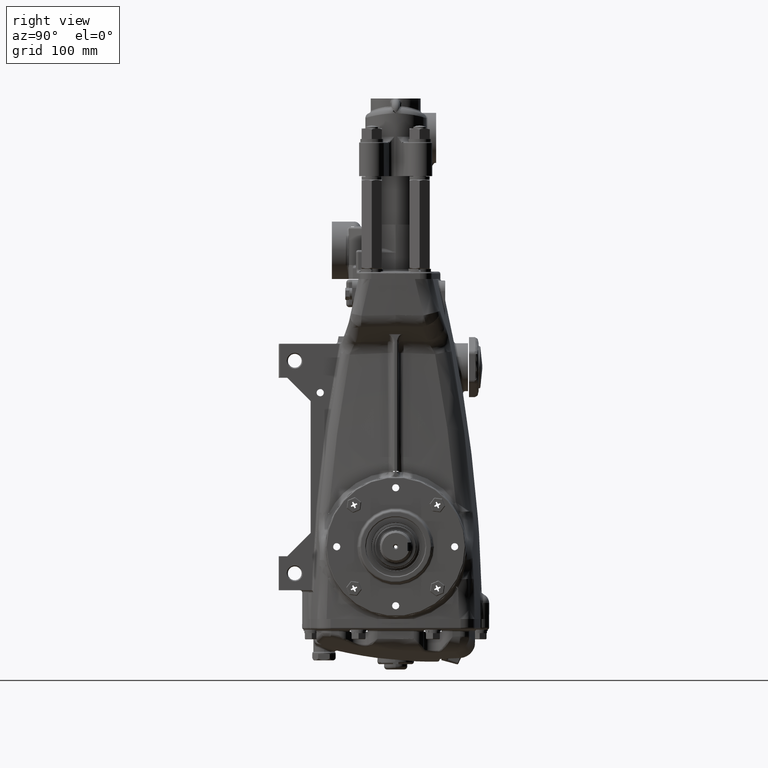
[diagram: clean part render]
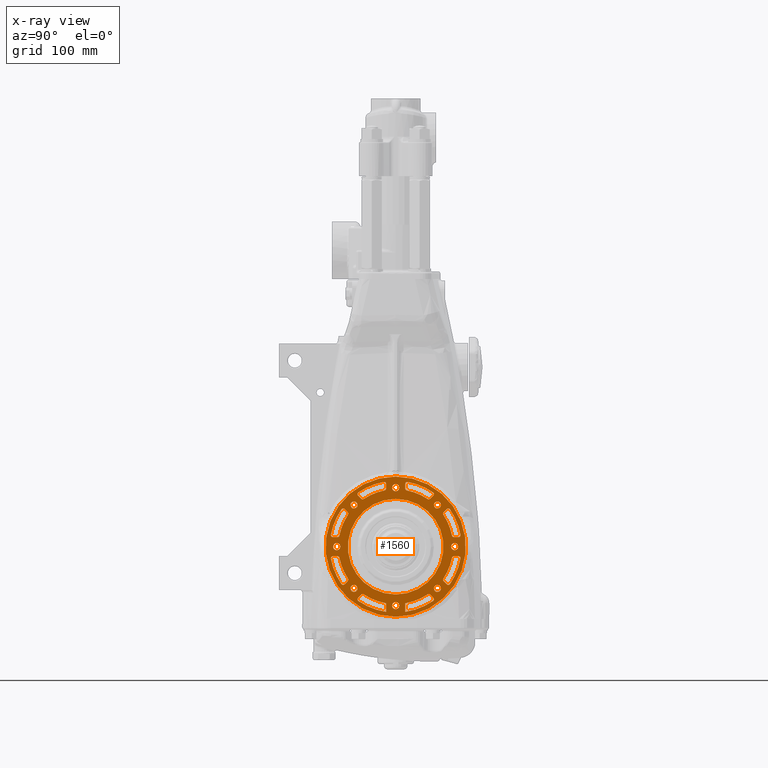
[diagram: x-ray — body ghosted, one internal face saturated and labeled with its STEP entity id]
A machine part, right view, then the same camera in x-ray: the body is ghosted and one INTERNAL B-rep face — a face not visible from any outside direction — is saturated and labeled: STEP entity #1560.
In plain terms, the highlighted planar face has unit normal (1, 0, -0).
Its self-contained STEP definition (entity closure, byte-faithful):
#107 = LINE ( 'NONE', #62931, #22532 ) ;
#106 = AXIS2_PLACEMENT_3D ( 'NONE', #72000, #13389, #23381 ) ;
#155 = DIRECTION ( 'NONE',  ( -1.000000000000000000, -0.000000000000000000, 2.542649619626401295E-33 ) ) ;
#390 = CARTESIAN_POINT ( 'NONE',  ( 4.448818897637796255, -1.545056155742266846, 1.414209699049338909 ) ) ;
#454 = EDGE_CURVE ( 'NONE', #49124, #89845, #58560, .T. ) ;
#677 = DIRECTION ( 'NONE',  ( -1.000000000000000000, -0.000000000000000000, 2.542649619626401295E-33 ) ) ;
#1230 = VERTEX_POINT ( 'NONE', #62311 ) ;
#1289 = CARTESIAN_POINT ( 'NONE',  ( 4.448818897637796255, -1.222376485180403316, -1.834831177546709879 ) ) ;
#1306 = EDGE_CURVE ( 'NONE', #48693, #75830, #32025, .T. ) ;
#1560 = ADVANCED_FACE ( 'NONE', ( #54784, #39452, #32559, #6758, #40509, #71695, #47407, #87027, #64802, #56887, #103949, #23612, #64288, #63768, #96539, #96015, #89112, #16740 ), #8841, .T. ) ;
#1957 = CARTESIAN_POINT ( 'NONE',  ( 4.448818897637796255, -1.769301492634324013, -1.178720182138250916 ) ) ;
#2025 = DIRECTION ( 'NONE',  ( -1.000000000000000000, -0.000000000000000000, 2.542649619626401295E-33 ) ) ;
#2055 = DIRECTION ( 'NONE',  ( 0.000000000000000000, -3.469446951953617344E-15, -1.000000000000000000 ) ) ;
#2303 = VECTOR ( 'NONE', #89958, 39.37007874015748854 ) ;
#2469 = DIRECTION ( 'NONE',  ( 0.000000000000000000, -3.469446951953611428E-15, -1.000000000000000000 ) ) ;
#3062 = EDGE_LOOP ( 'NONE', ( #70900, #11997 ) ) ;
#3457 = CARTESIAN_POINT ( 'NONE',  ( 4.448818897637796255, 1.380319299662858157, 2.013189148441365983 ) ) ;
#3515 = CIRCLE ( 'NONE', #106, 0.07874015748031495954 ) ;
#3562 = EDGE_CURVE ( 'NONE', #32742, #46263, #10424, .T. ) ;
#3587 = AXIS2_PLACEMENT_3D ( 'NONE', #35916, #36440, #4265 ) ;
#3682 = ORIENTED_EDGE ( 'NONE', *, *, #33561, .T. ) ;
#3728 = DIRECTION ( 'NONE',  ( -1.000000000000000000, -0.000000000000000000, 2.542649619626401295E-33 ) ) ;
#3759 = AXIS2_PLACEMENT_3D ( 'NONE', #10485, #60109, #27353 ) ;
#3977 = EDGE_CURVE ( 'NONE', #31525, #1230, #69613, .T. ) ;
#4036 = VERTEX_POINT ( 'NONE', #19215 ) ;
#4265 = DIRECTION ( 'NONE',  ( 0.000000000000000000, -6.938893903907222856E-15, -1.000000000000000000 ) ) ;
#4395 = VERTEX_POINT ( 'NONE', #35961 ) ;
#4470 = VERTEX_POINT ( 'NONE', #77189 ) ;
#4472 = DIRECTION ( 'NONE',  ( 1.000000000000000000, -0.000000000000000000, 9.899117423955728400E-17 ) ) ;
#4523 = VERTEX_POINT ( 'NONE', #103554 ) ;
#4569 = CIRCLE ( 'NONE', #13004, 0.1308464566929133932 ) ;
#5236 = ORIENTED_EDGE ( 'NONE', *, *, #8712, .T. ) ;
#5733 = ORIENTED_EDGE ( 'NONE', *, *, #71759, .T. ) ;
#6016 = EDGE_CURVE ( 'NONE', #100038, #67600, #25650, .T. ) ;
#6105 = DIRECTION ( 'NONE',  ( 0.000000000000000000, 0.000000000000000000, -1.000000000000000000 ) ) ;
#6178 = CIRCLE ( 'NONE', #75312, 0.07874015748031495954 ) ;
#6194 = ORIENTED_EDGE ( 'NONE', *, *, #18948, .T. ) ;
#6339 = AXIS2_PLACEMENT_3D ( 'NONE', #38952, #71719, #32067 ) ;
#6617 = CARTESIAN_POINT ( 'NONE',  ( 4.448818897637796255, 0.000000000000000000, 0.000000000000000000 ) ) ;
#6742 = DIRECTION ( 'NONE',  ( 0.000000000000000000, 0.000000000000000000, 1.000000000000000000 ) ) ;
#6758 = FACE_BOUND ( 'NONE', #31733, .T. ) ;
#6765 = CARTESIAN_POINT ( 'NONE',  ( 4.448818897637796255, -1.391470569947497182, -1.892569863701748956 ) ) ;
#6808 = DIRECTION ( 'NONE',  ( 0.000000000000000000, 0.000000000000000000, -1.000000000000000000 ) ) ;
#6835 = EDGE_CURVE ( 'NONE', #46545, #62908, #19720, .T. ) ;
#6973 = CARTESIAN_POINT ( 'NONE',  ( 4.448818897637796255, 1.278054184486443701, -1.779153478240673492 ) ) ;
#7014 = EDGE_LOOP ( 'NONE', ( #93023, #81608 ) ) ;
#7043 = DIRECTION ( 'NONE',  ( 0.000000000000000000, 0.000000000000000000, 1.000000000000000000 ) ) ;
#7148 = AXIS2_PLACEMENT_3D ( 'NONE', #29057, #85624, #94575 ) ;
#7303 = VERTEX_POINT ( 'NONE', #390 ) ;
#7809 = VERTEX_POINT ( 'NONE', #55188 ) ;
#7924 = CARTESIAN_POINT ( 'NONE',  ( 4.448818897637796255, 0.3543307086614173040, 2.161772269809818514 ) ) ;
#7957 = DIRECTION ( 'NONE',  ( 0.000000000000000000, 0.000000000000000000, 1.000000000000000000 ) ) ;
#8227 = CARTESIAN_POINT ( 'NONE',  ( 4.448818897637796255, -1.892569863701741184, 1.391470569947510727 ) ) ;
#8712 = EDGE_CURVE ( 'NONE', #103483, #24034, #74893, .T. ) ;
#8809 = DIRECTION ( 'NONE',  ( -1.000000000000000000, -0.000000000000000000, -9.899117423955728400E-17 ) ) ;
#8838 = EDGE_CURVE ( 'NONE', #24034, #97569, #99561, .T. ) ;
#8841 = PLANE ( 'NONE',  #79254 ) ;
#8930 = ORIENTED_EDGE ( 'NONE', *, *, #92993, .T. ) ;
#9117 = EDGE_CURVE ( 'NONE', #59806, #29646, #96688, .T. ) ;
#9146 = CARTESIAN_POINT ( 'NONE',  ( 4.448818897637796255, 0.000000000000000000, -2.185039370078739829 ) ) ;
#9323 = AXIS2_PLACEMENT_3D ( 'NONE', #15604, #73709, #80061 ) ;
#9557 = EDGE_CURVE ( 'NONE', #62908, #100368, #10722, .T. ) ;
#9860 = CARTESIAN_POINT ( 'NONE',  ( 4.448818897637796255, -1.178720182138244033, -1.769301492634328232 ) ) ;
#10351 = VERTEX_POINT ( 'NONE', #48257 ) ;
#10397 = CARTESIAN_POINT ( 'NONE',  ( 4.448818897637796255, -1.222376485180395989, 1.834831177546715653 ) ) ;
#10420 = ORIENTED_EDGE ( 'NONE', *, *, #66974, .T. ) ;
#10424 = CIRCLE ( 'NONE', #64455, 0.07874015748031502893 ) ;
#10463 = ORIENTED_EDGE ( 'NONE', *, *, #96919, .T. ) ;
#10485 = CARTESIAN_POINT ( 'NONE',  ( 4.448818897637796255, 1.545056155742267512, 1.545056155742250636 ) ) ;
#10702 = EDGE_CURVE ( 'NONE', #100368, #59806, #96615, .T. ) ;
#10722 = CIRCLE ( 'NONE', #78181, 0.07874015748031495954 ) ;
#10766 = DIRECTION ( 'NONE',  ( 0.000000000000000000, 0.000000000000000000, 1.000000000000000000 ) ) ;
#10776 = CARTESIAN_POINT ( 'NONE',  ( 4.448818897637796255, 0.000000000000000000, -4.975950889780015573E-33 ) ) ;
#10815 = ORIENTED_EDGE ( 'NONE', *, *, #92539, .T. ) ;
#10944 = ORIENTED_EDGE ( 'NONE', *, *, #43367, .T. ) ;
#10980 = VERTEX_POINT ( 'NONE', #80873 ) ;
#11078 = DIRECTION ( 'NONE',  ( -1.000000000000000000, -0.000000000000000000, 2.542649619626401295E-33 ) ) ;
#11109 = VERTEX_POINT ( 'NONE', #19031 ) ;
#11268 = CIRCLE ( 'NONE', #34879, 0.1308464566929133932 ) ;
#11309 = EDGE_CURVE ( 'NONE', #17753, #93606, #53378, .T. ) ;
#11907 = AXIS2_PLACEMENT_3D ( 'NONE', #77648, #15142, #38906 ) ;
#11997 = ORIENTED_EDGE ( 'NONE', *, *, #44778, .T. ) ;
#12400 = VERTEX_POINT ( 'NONE', #14214 ) ;
#12913 = DIRECTION ( 'NONE',  ( 0.000000000000000000, 0.000000000000000000, 1.000000000000000000 ) ) ;
#13004 = AXIS2_PLACEMENT_3D ( 'NONE', #85896, #21948, #37786 ) ;
#13162 = DIRECTION ( 'NONE',  ( 0.000000000000000000, 0.000000000000000000, 1.000000000000000000 ) ) ;
#13271 = AXIS2_PLACEMENT_3D ( 'NONE', #22253, #38090, #54472 ) ;
#13370 = CARTESIAN_POINT ( 'NONE',  ( 4.448818897637796255, 1.545056155742267512, 1.414209699049337354 ) ) ;
#13389 = DIRECTION ( 'NONE',  ( -1.000000000000000000, -0.000000000000000000, 2.542649619626401295E-33 ) ) ;
#13487 = CARTESIAN_POINT ( 'NONE',  ( 4.448818897637796255, 1.335792870641483443, -1.948247563007767136 ) ) ;
#13518 = VERTEX_POINT ( 'NONE', #63218 ) ;
#13525 = CIRCLE ( 'NONE', #11907, 2.440944881889764329 ) ;
#13558 = EDGE_CURVE ( 'NONE', #34883, #103238, #78045, .T. ) ;
#13670 = CARTESIAN_POINT ( 'NONE',  ( 4.448818897637796255, -1.732821347429613024, 1.231722053675382345 ) ) ;
#13691 = EDGE_CURVE ( 'NONE', #94873, #81909, #25764, .T. ) ;
#13693 = AXIS2_PLACEMENT_3D ( 'NONE', #29490, #30011, #62752 ) ;
#13783 = EDGE_CURVE ( 'NONE', #11109, #16750, #80014, .T. ) ;
#14003 = DIRECTION ( 'NONE',  ( -1.000000000000000000, -0.000000000000000000, 2.542649619626401295E-33 ) ) ;
#14047 = ORIENTED_EDGE ( 'NONE', *, *, #88598, .T. ) ;
#14153 = CARTESIAN_POINT ( 'NONE',  ( 4.448818897637796255, -2.399572835668333237, -0.4475065616797894719 ) ) ;
#14214 = CARTESIAN_POINT ( 'NONE',  ( 4.448818897637796255, -1.380319299662845056, 2.013189148441374865 ) ) ;
#14644 = DIRECTION ( 'NONE',  ( -1.000000000000000000, -0.000000000000000000, -9.899117423955728400E-17 ) ) ;
#14743 = CIRCLE ( 'NONE', #99110, 2.440944881889763884 ) ;
#14753 = VERTEX_POINT ( 'NONE', #51706 ) ;
#14924 = CARTESIAN_POINT ( 'NONE',  ( 4.448818897637796255, 1.948247563007781569, -1.335792870641463015 ) ) ;
#15030 = ORIENTED_EDGE ( 'NONE', *, *, #69145, .T. ) ;
#15053 = CARTESIAN_POINT ( 'NONE',  ( 4.448818897637796255, -1.545056155742266846, 1.545056155742252191 ) ) ;
#15071 = EDGE_CURVE ( 'NONE', #51539, #71393, #93524, .T. ) ;
#15142 = DIRECTION ( 'NONE',  ( -1.000000000000000000, -0.000000000000000000, -9.899117423955728400E-17 ) ) ;
#15295 = VERTEX_POINT ( 'NONE', #49754 ) ;
#15459 = VERTEX_POINT ( 'NONE', #35988 ) ;
#15604 = CARTESIAN_POINT ( 'NONE',  ( 4.448818897637796255, 0.000000000000000000, -2.185039370078739829 ) ) ;
#15676 = CARTESIAN_POINT ( 'NONE',  ( 4.448818897637796255, -2.185039370078740273, 3.577780186915982985E-67 ) ) ;
#15690 = DIRECTION ( 'NONE',  ( 1.000000000000000000, 0.000000000000000000, -2.542649619626400953E-33 ) ) ;
#15822 = EDGE_CURVE ( 'NONE', #68631, #73965, #53078, .T. ) ;
#16142 = AXIS2_PLACEMENT_3D ( 'NONE', #97527, #57324, #71619 ) ;
#16317 = EDGE_CURVE ( 'NONE', #82056, #7303, #39643, .T. ) ;
#16514 = EDGE_LOOP ( 'NONE', ( #45773, #96604, #45759, #51324, #27729, #22775, #10420, #15030 ) ) ;
#16740 = FACE_OUTER_BOUND ( 'NONE', #67904, .T. ) ;
#16750 = VERTEX_POINT ( 'NONE', #22406 ) ;
#16769 = CARTESIAN_POINT ( 'NONE',  ( 4.448818897637796255, 2.168196436623980539, -1.432039704700285965 ) ) ;
#17185 = ORIENTED_EDGE ( 'NONE', *, *, #68170, .T. ) ;
#17497 = EDGE_CURVE ( 'NONE', #19111, #81239, #89751, .T. ) ;
#17598 = DIRECTION ( 'NONE',  ( -1.000000000000000000, -0.000000000000000000, -9.899117423955728400E-17 ) ) ;
#17668 = EDGE_CURVE ( 'NONE', #14753, #32742, #57702, .T. ) ;
#17753 = VERTEX_POINT ( 'NONE', #41400 ) ;
#17812 = CIRCLE ( 'NONE', #16142, 0.1308464566929133932 ) ;
#17826 = EDGE_CURVE ( 'NONE', #57485, #100979, #71205, .T. ) ;
#17935 = DIRECTION ( 'NONE',  ( -1.000000000000000000, -0.000000000000000000, 2.542649619626401295E-33 ) ) ;
#18095 = AXIS2_PLACEMENT_3D ( 'NONE', #31676, #23752, #7957 ) ;
#18115 = ORIENTED_EDGE ( 'NONE', *, *, #60191, .T. ) ;
#18167 = CARTESIAN_POINT ( 'NONE',  ( 4.448818897637796255, 0.000000000000000000, 0.000000000000000000 ) ) ;
#18781 = AXIS2_PLACEMENT_3D ( 'NONE', #36648, #4472, #44065 ) ;
#18809 = DIRECTION ( 'NONE',  ( 0.000000000000000000, 0.000000000000000000, 1.000000000000000000 ) ) ;
#18948 = EDGE_CURVE ( 'NONE', #81909, #69058, #73099, .T. ) ;
#19031 = CARTESIAN_POINT ( 'NONE',  ( 4.448818897637796255, -2.161772269809818070, 0.3543307086614185808 ) ) ;
#19111 = VERTEX_POINT ( 'NONE', #83251 ) ;
#19182 = AXIS2_PLACEMENT_3D ( 'NONE', #73074, #40828, #56690 ) ;
#19193 = CIRCLE ( 'NONE', #84959, 0.07874015748031502893 ) ;
#19215 = CARTESIAN_POINT ( 'NONE',  ( 4.448818897637796255, 1.278054184486436373, 1.779153478240679265 ) ) ;
#19321 = EDGE_CURVE ( 'NONE', #29646, #65592, #107, .T. ) ;
#19640 = VECTOR ( 'NONE', #57085, 39.37007874015748854 ) ;
#19720 = LINE ( 'NONE', #60392, #98093 ) ;
#19786 = VERTEX_POINT ( 'NONE', #79738 ) ;
#19944 = ORIENTED_EDGE ( 'NONE', *, *, #25180, .T. ) ;
#20029 = CARTESIAN_POINT ( 'NONE',  ( 4.448818897637796255, -1.834831177546705216, -1.222376485180409755 ) ) ;
#20047 = CIRCLE ( 'NONE', #40324, 2.598425196850393970 ) ;
#20293 = AXIS2_PLACEMENT_3D ( 'NONE', #15053, #46782, #47289 ) ;
#20408 = ORIENTED_EDGE ( 'NONE', *, *, #83544, .T. ) ;
#20551 = CIRCLE ( 'NONE', #39077, 0.1308464566929133932 ) ;
#20610 = CARTESIAN_POINT ( 'NONE',  ( 4.448818897637796255, 1.545056155742267512, 1.675902612435164141 ) ) ;
#20856 = CARTESIAN_POINT ( 'NONE',  ( 4.448818897637796255, 1.545056155742267290, -1.414209699049337354 ) ) ;
#20939 = VERTEX_POINT ( 'NONE', #62442 ) ;
#20992 = CIRCLE ( 'NONE', #41254, 0.07874015748031502893 ) ;
#21049 = CARTESIAN_POINT ( 'NONE',  ( 4.448818897637796255, 0.000000000000000000, 0.000000000000000000 ) ) ;
#21189 = ORIENTED_EDGE ( 'NONE', *, *, #88444, .T. ) ;
#21518 = DIRECTION ( 'NONE',  ( -1.000000000000000000, -0.000000000000000000, -9.899117423955728400E-17 ) ) ;
#21613 = CARTESIAN_POINT ( 'NONE',  ( 4.448818897637796255, -1.545056155742268178, -1.545056155742250192 ) ) ;
#21665 = CARTESIAN_POINT ( 'NONE',  ( 4.448818897637796255, -1.948247563007768690, 1.335792870641482999 ) ) ;
#21714 = VERTEX_POINT ( 'NONE', #42333 ) ;
#21754 = ORIENTED_EDGE ( 'NONE', *, *, #62613, .T. ) ;
#21948 = DIRECTION ( 'NONE',  ( -1.000000000000000000, -0.000000000000000000, -9.899117423955728400E-17 ) ) ;
#22013 = DIRECTION ( 'NONE',  ( 0.000000000000000000, 0.000000000000000000, -1.000000000000000000 ) ) ;
#22038 = CARTESIAN_POINT ( 'NONE',  ( 4.448818897637796255, -0.3543307086614173040, -2.415090405207086288 ) ) ;
#22253 = CARTESIAN_POINT ( 'NONE',  ( 4.448818897637796255, 0.000000000000000000, 0.000000000000000000 ) ) ;
#22406 = CARTESIAN_POINT ( 'NONE',  ( 4.448818897637796255, -2.322167260324193627, 0.3543307086614186918 ) ) ;
#22532 = VECTOR ( 'NONE', #79859, 39.37007874015748854 ) ;
#22638 = CARTESIAN_POINT ( 'NONE',  ( 4.448818897637796255, 1.178720182138256911, -1.769301492634320017 ) ) ;
#22720 = VERTEX_POINT ( 'NONE', #57119 ) ;
#22744 = AXIS2_PLACEMENT_3D ( 'NONE', #33566, #8809, #80642 ) ;
#22762 = DIRECTION ( 'NONE',  ( -1.000000000000000000, -0.000000000000000000, -9.899117423955728400E-17 ) ) ;
#22775 = ORIENTED_EDGE ( 'NONE', *, *, #11309, .T. ) ;
#22960 = DIRECTION ( 'NONE',  ( -1.000000000000000000, -0.000000000000000000, -9.899117423955728400E-17 ) ) ;
#23099 = CIRCLE ( 'NONE', #46716, 0.07874015748031502893 ) ;
#23135 = VERTEX_POINT ( 'NONE', #7924 ) ;
#23381 = DIRECTION ( 'NONE',  ( 0.000000000000000000, 0.000000000000000000, -1.000000000000000000 ) ) ;
#23392 = ORIENTED_EDGE ( 'NONE', *, *, #63576, .T. ) ;
#23612 = FACE_BOUND ( 'NONE', #16514, .T. ) ;
#23661 = CARTESIAN_POINT ( 'NONE',  ( 4.448818897637796255, -1.948247563007772021, -1.335792870641476782 ) ) ;
#23688 = CARTESIAN_POINT ( 'NONE',  ( 4.448818897637796255, -1.834831177546701886, 1.222376485180416417 ) ) ;
#23743 = CARTESIAN_POINT ( 'NONE',  ( 4.448818897637796255, -1.545056155742268178, -1.545056155742250192 ) ) ;
#23752 = DIRECTION ( 'NONE',  ( -1.000000000000000000, -0.000000000000000000, -9.899117423955728400E-17 ) ) ;
#23822 = CIRCLE ( 'NONE', #3587, 0.07874015748031502893 ) ;
#23863 = EDGE_CURVE ( 'NONE', #98036, #23135, #72960, .T. ) ;
#24034 = VERTEX_POINT ( 'NONE', #52725 ) ;
#24078 = VERTEX_POINT ( 'NONE', #6765 ) ;
#24267 = AXIS2_PLACEMENT_3D ( 'NONE', #56122, #70930, #7043 ) ;
#24616 = DIRECTION ( 'NONE',  ( -1.000000000000000000, -0.000000000000000000, 2.542649619626401295E-33 ) ) ;
#25143 = VECTOR ( 'NONE', #60376, 39.37007874015748854 ) ;
#25180 = EDGE_CURVE ( 'NONE', #72159, #53357, #75837, .T. ) ;
#25511 = CARTESIAN_POINT ( 'NONE',  ( 4.448818897637796255, -2.185039370078740273, 0.1308464566929133932 ) ) ;
#25515 = VERTEX_POINT ( 'NONE', #55418 ) ;
#25554 = EDGE_CURVE ( 'NONE', #16750, #14753, #6178, .T. ) ;
#25650 = CIRCLE ( 'NONE', #3759, 0.1308464566929133932 ) ;
#25764 = CIRCLE ( 'NONE', #45991, 0.07874015748031502893 ) ;
#26133 = CARTESIAN_POINT ( 'NONE',  ( 4.448818897637796255, -2.168196436624624024, -1.432039704699310967 ) ) ;
#26571 = EDGE_CURVE ( 'NONE', #101565, #103483, #14743, .T. ) ;
#26624 = AXIS2_PLACEMENT_3D ( 'NONE', #23661, #101919, #6808 ) ;
#26708 = CARTESIAN_POINT ( 'NONE',  ( 4.448818897637796255, 0.3543307086614173040, 2.096248742043171021 ) ) ;
#26796 = VERTEX_POINT ( 'NONE', #73392 ) ;
#26927 = EDGE_LOOP ( 'NONE', ( #28926, #78150, #10815, #60186, #19944, #40314, #104386, #50895 ) ) ;
#27353 = DIRECTION ( 'NONE',  ( 0.000000000000000000, 0.000000000000000000, 1.000000000000000000 ) ) ;
#27536 = AXIS2_PLACEMENT_3D ( 'NONE', #93915, #21518, #36834 ) ;
#27729 = ORIENTED_EDGE ( 'NONE', *, *, #104530, .T. ) ;
#27826 = ORIENTED_EDGE ( 'NONE', *, *, #10702, .T. ) ;
#28405 = CARTESIAN_POINT ( 'NONE',  ( 4.448818897637796255, -1.391470569947490077, 1.892569863701754951 ) ) ;
#28553 = DIRECTION ( 'NONE',  ( -1.000000000000000000, -0.000000000000000000, -9.899117423955728400E-17 ) ) ;
#28634 = LINE ( 'NONE', #62398, #72715 ) ;
#28669 = EDGE_CURVE ( 'NONE', #75830, #4395, #70182, .T. ) ;
#28926 = ORIENTED_EDGE ( 'NONE', *, *, #454, .T. ) ;
#29049 = CARTESIAN_POINT ( 'NONE',  ( 4.448818897637796255, -1.380319299662852162, -2.013189148441368648 ) ) ;
#29057 = CARTESIAN_POINT ( 'NONE',  ( 4.448818897637796255, 0.4330708661417322913, 2.161772269809818514 ) ) ;
#29290 = DIRECTION ( 'NONE',  ( 0.000000000000000000, -0.000000000000000000, -1.000000000000000000 ) ) ;
#29326 = DIRECTION ( 'NONE',  ( -1.000000000000000000, -0.000000000000000000, 2.542649619626401295E-33 ) ) ;
#29412 = CARTESIAN_POINT ( 'NONE',  ( 4.448818897637796255, 0.000000000000000000, -4.975950889780015573E-33 ) ) ;
#29457 = ORIENTED_EDGE ( 'NONE', *, *, #17497, .T. ) ;
#29490 = CARTESIAN_POINT ( 'NONE',  ( 4.448818897637796255, 0.000000000000000000, 0.000000000000000000 ) ) ;
#29491 = LINE ( 'NONE', #13670, #99221 ) ;
#29646 = VERTEX_POINT ( 'NONE', #103921 ) ;
#30011 = DIRECTION ( 'NONE',  ( -1.000000000000000000, -0.000000000000000000, -9.899117423955728400E-17 ) ) ;
#30382 = CARTESIAN_POINT ( 'NONE',  ( 4.448818897637796255, 0.3543307086614174151, -2.096248742043171021 ) ) ;
#30724 = VECTOR ( 'NONE', #94961, 39.37007874015748143 ) ;
#30945 = CARTESIAN_POINT ( 'NONE',  ( 4.448818897637796255, 0.4176040494938132452, 2.084566117316610789 ) ) ;
#31102 = CARTESIAN_POINT ( 'NONE',  ( 4.448818897637796255, -2.322167260324193627, 0.4330708661417335681 ) ) ;
#31226 = CIRCLE ( 'NONE', #58248, 2.125984251968503713 ) ;
#31235 = LINE ( 'NONE', #55533, #91067 ) ;
#31525 = VERTEX_POINT ( 'NONE', #61403 ) ;
#31555 = EDGE_LOOP ( 'NONE', ( #21189, #97870, #6194, #32214, #77983, #94242 ) ) ;
#31676 = CARTESIAN_POINT ( 'NONE',  ( 4.448818897637796255, 0.000000000000000000, 2.185039370078740717 ) ) ;
#31700 = CARTESIAN_POINT ( 'NONE',  ( 4.448818897637796255, -2.185039370078740273, 3.577780186915982985E-67 ) ) ;
#31733 = EDGE_LOOP ( 'NONE', ( #79843, #54600 ) ) ;
#32025 = CIRCLE ( 'NONE', #69167, 2.440944881889763884 ) ;
#32067 = DIRECTION ( 'NONE',  ( 0.000000000000000000, 0.000000000000000000, 1.000000000000000000 ) ) ;
#32214 = ORIENTED_EDGE ( 'NONE', *, *, #87213, .T. ) ;
#32512 = DIRECTION ( 'NONE',  ( -1.000000000000000000, -0.000000000000000000, 2.542649619626401295E-33 ) ) ;
#32559 = FACE_BOUND ( 'NONE', #76210, .T. ) ;
#32626 = EDGE_CURVE ( 'NONE', #15295, #22720, #11268, .T. ) ;
#32742 = VERTEX_POINT ( 'NONE', #86252 ) ;
#32934 = EDGE_LOOP ( 'NONE', ( #46339, #29457 ) ) ;
#33048 = DIRECTION ( 'NONE',  ( 0.000000000000000000, 0.000000000000000000, 1.000000000000000000 ) ) ;
#33222 = EDGE_CURVE ( 'NONE', #22720, #15295, #55185, .T. ) ;
#33561 = EDGE_CURVE ( 'NONE', #21714, #98036, #41753, .T. ) ;
#33566 = CARTESIAN_POINT ( 'NONE',  ( 4.448818897637796255, -1.545056155742266846, 1.545056155742252191 ) ) ;
#34059 = ORIENTED_EDGE ( 'NONE', *, *, #3977, .T. ) ;
#34813 = CIRCLE ( 'NONE', #83808, 2.125984251968504157 ) ;
#34879 = AXIS2_PLACEMENT_3D ( 'NONE', #100601, #62451, #78327 ) ;
#34883 = VERTEX_POINT ( 'NONE', #35776 ) ;
#35140 = EDGE_CURVE ( 'NONE', #65563, #88142, #58806, .T. ) ;
#35169 = VERTEX_POINT ( 'NONE', #97547 ) ;
#35461 = EDGE_CURVE ( 'NONE', #100979, #57485, #20047, .T. ) ;
#35494 = DIRECTION ( 'NONE',  ( 0.000000000000000000, -2.142009898075826297E-16, 1.000000000000000000 ) ) ;
#35599 = EDGE_CURVE ( 'NONE', #7809, #35169, #82508, .T. ) ;
#35635 = VERTEX_POINT ( 'NONE', #9860 ) ;
#35758 = EDGE_CURVE ( 'NONE', #65592, #39560, #95361, .T. ) ;
#35776 = CARTESIAN_POINT ( 'NONE',  ( 4.448818897637796255, 2.084566117316610789, 0.4176040494938145220 ) ) ;
#35916 = CARTESIAN_POINT ( 'NONE',  ( 4.448818897637796255, 1.335792870641475893, 1.948247563007773575 ) ) ;
#35961 = CARTESIAN_POINT ( 'NONE',  ( 4.448818897637796255, 2.322167260324193627, 0.3543307086614186918 ) ) ;
#35988 = CARTESIAN_POINT ( 'NONE',  ( 4.448818897637796255, 2.084566117316610345, -0.4176040494938125791 ) ) ;
#36108 = CARTESIAN_POINT ( 'NONE',  ( 4.448818897637796255, 2.399572835668333237, 0.4475065616797913037 ) ) ;
#36218 = CIRCLE ( 'NONE', #91911, 0.07874015748031489015 ) ;
#36366 = DIRECTION ( 'NONE',  ( -1.000000000000000000, -0.000000000000000000, -9.899117423955728400E-17 ) ) ;
#36440 = DIRECTION ( 'NONE',  ( -1.000000000000000000, -0.000000000000000000, 2.542649619626401295E-33 ) ) ;
#36530 = ORIENTED_EDGE ( 'NONE', *, *, #17826, .T. ) ;
#36648 = CARTESIAN_POINT ( 'NONE',  ( 4.448818897637796255, 0.000000000000000000, 0.000000000000000000 ) ) ;
#36653 = CARTESIAN_POINT ( 'NONE',  ( 4.448818897637796255, 0.000000000000000000, 0.000000000000000000 ) ) ;
#36795 = CARTESIAN_POINT ( 'NONE',  ( 4.448818897637796255, 2.322167260324193183, -0.3543307086614165824 ) ) ;
#36834 = DIRECTION ( 'NONE',  ( 0.000000000000000000, 0.000000000000000000, 1.000000000000000000 ) ) ;
#36917 = AXIS2_PLACEMENT_3D ( 'NONE', #97028, #80644, #33048 ) ;
#37388 = DIRECTION ( 'NONE',  ( 0.000000000000000000, 0.000000000000000000, 1.000000000000000000 ) ) ;
#37786 = DIRECTION ( 'NONE',  ( 0.000000000000000000, 0.000000000000000000, 1.000000000000000000 ) ) ;
#37988 = ORIENTED_EDGE ( 'NONE', *, *, #28669, .T. ) ;
#38090 = DIRECTION ( 'NONE',  ( 1.000000000000000000, -0.000000000000000000, 9.899117423955728400E-17 ) ) ;
#38747 = CARTESIAN_POINT ( 'NONE',  ( 4.448818897637796255, 2.013189148441373977, -1.380319299662845056 ) ) ;
#38794 = CARTESIAN_POINT ( 'NONE',  ( 4.448818897637796255, -2.096248742043170576, 0.3543307086614185808 ) ) ;
#38906 = DIRECTION ( 'NONE',  ( 0.000000000000000000, 0.000000000000000000, 1.000000000000000000 ) ) ;
#38952 = CARTESIAN_POINT ( 'NONE',  ( 4.448818897637796255, 0.000000000000000000, 0.000000000000000000 ) ) ;
#39077 = AXIS2_PLACEMENT_3D ( 'NONE', #21613, #100391, #101416 ) ;
#39402 = EDGE_CURVE ( 'NONE', #53357, #10980, #20992, .T. ) ;
#39452 = FACE_BOUND ( 'NONE', #96269, .T. ) ;
#39560 = VERTEX_POINT ( 'NONE', #76354 ) ;
#39576 = CARTESIAN_POINT ( 'NONE',  ( 4.448818897637796255, 0.000000000000000000, 0.000000000000000000 ) ) ;
#39595 = CIRCLE ( 'NONE', #59836, 0.07874015748031495954 ) ;
#39643 = CIRCLE ( 'NONE', #22744, 0.1308464566929133932 ) ;
#40314 = ORIENTED_EDGE ( 'NONE', *, *, #39402, .T. ) ;
#40324 = AXIS2_PLACEMENT_3D ( 'NONE', #29412, #61645, #22013 ) ;
#40509 = FACE_BOUND ( 'NONE', #88101, .T. ) ;
#40539 = ORIENTED_EDGE ( 'NONE', *, *, #53030, .T. ) ;
#40667 = CARTESIAN_POINT ( 'NONE',  ( 4.448818897637796255, 2.415090405207086732, 0.3543307086614186918 ) ) ;
#40828 = DIRECTION ( 'NONE',  ( -1.000000000000000000, -0.000000000000000000, -9.899117423955728400E-17 ) ) ;
#40832 = CARTESIAN_POINT ( 'NONE',  ( 4.448818897637796255, -1.779153478240678155, -1.278054184486436817 ) ) ;
#40920 = EDGE_CURVE ( 'NONE', #89845, #12400, #92127, .T. ) ;
#41101 = CIRCLE ( 'NONE', #73178, 0.07874015748031502893 ) ;
#41254 = AXIS2_PLACEMENT_3D ( 'NONE', #82718, #65793, #73223 ) ;
#41302 = CIRCLE ( 'NONE', #100416, 0.07874015748031495954 ) ;
#41400 = CARTESIAN_POINT ( 'NONE',  ( 4.448818897637796255, -1.779153478240674602, 1.278054184486443923 ) ) ;
#41665 = EDGE_CURVE ( 'NONE', #4470, #72159, #70215, .T. ) ;
#41753 = CIRCLE ( 'NONE', #6339, 2.125984251968504157 ) ;
#42136 = DIRECTION ( 'NONE',  ( 0.000000000000000000, 0.000000000000000000, -1.000000000000000000 ) ) ;
#42169 = DIRECTION ( 'NONE',  ( -1.000000000000000000, -0.000000000000000000, 2.542649619626401295E-33 ) ) ;
#42265 = VERTEX_POINT ( 'NONE', #25511 ) ;
#42333 = CARTESIAN_POINT ( 'NONE',  ( 4.448818897637796255, 1.178720182138251360, 1.769301492634324235 ) ) ;
#42417 = EDGE_LOOP ( 'NONE', ( #77846, #86735, #18115, #8930, #40539, #34059 ) ) ;
#42559 = DIRECTION ( 'NONE',  ( -1.000000000000000000, -0.000000000000000000, -9.899117423955728400E-17 ) ) ;
#42779 = DIRECTION ( 'NONE',  ( -1.000000000000000000, -0.000000000000000000, 2.542649619626401295E-33 ) ) ;
#43215 = AXIS2_PLACEMENT_3D ( 'NONE', #9146, #97900, #50308 ) ;
#43309 = ORIENTED_EDGE ( 'NONE', *, *, #47537, .T. ) ;
#43367 = EDGE_CURVE ( 'NONE', #26796, #42265, #97548, .T. ) ;
#43973 = ORIENTED_EDGE ( 'NONE', *, *, #104452, .T. ) ;
#44065 = DIRECTION ( 'NONE',  ( 0.000000000000000000, 0.000000000000000000, 1.000000000000000000 ) ) ;
#44071 = ORIENTED_EDGE ( 'NONE', *, *, #70075, .T. ) ;
#44514 = EDGE_CURVE ( 'NONE', #79577, #97500, #68260, .T. ) ;
#44778 = EDGE_CURVE ( 'NONE', #71393, #51539, #66574, .T. ) ;
#45025 = CARTESIAN_POINT ( 'NONE',  ( 4.448818897637796255, 0.000000000000000000, 0.000000000000000000 ) ) ;
#45387 = EDGE_CURVE ( 'NONE', #15459, #46545, #41302, .T. ) ;
#45647 = CIRCLE ( 'NONE', #94532, 0.07874015748031502893 ) ;
#45670 = ORIENTED_EDGE ( 'NONE', *, *, #35758, .T. ) ;
#45759 = ORIENTED_EDGE ( 'NONE', *, *, #17668, .T. ) ;
#45773 = ORIENTED_EDGE ( 'NONE', *, *, #13783, .T. ) ;
#45835 = ORIENTED_EDGE ( 'NONE', *, *, #35461, .T. ) ;
#45991 = AXIS2_PLACEMENT_3D ( 'NONE', #13487, #14003, #6105 ) ;
#46263 = VERTEX_POINT ( 'NONE', #8227 ) ;
#46293 = ORIENTED_EDGE ( 'NONE', *, *, #84152, .T. ) ;
#46339 = ORIENTED_EDGE ( 'NONE', *, *, #101624, .T. ) ;
#46545 = VERTEX_POINT ( 'NONE', #77330 ) ;
#46716 = AXIS2_PLACEMENT_3D ( 'NONE', #10397, #51566, #2469 ) ;
#46782 = DIRECTION ( 'NONE',  ( -1.000000000000000000, -0.000000000000000000, -9.899117423955728400E-17 ) ) ;
#46810 = EDGE_CURVE ( 'NONE', #10980, #53624, #34813, .T. ) ;
#47267 = EDGE_CURVE ( 'NONE', #67600, #100038, #4569, .T. ) ;
#47289 = DIRECTION ( 'NONE',  ( 0.000000000000000000, 0.000000000000000000, 1.000000000000000000 ) ) ;
#47407 = FACE_BOUND ( 'NONE', #7014, .T. ) ;
#47537 = EDGE_CURVE ( 'NONE', #90301, #68631, #31226, .T. ) ;
#47926 = DIRECTION ( 'NONE',  ( 2.542649619626400953E-33, 0.000000000000000000, 1.000000000000000000 ) ) ;
#48043 = DIRECTION ( 'NONE',  ( -1.000000000000000000, -0.000000000000000000, -9.899117423955728400E-17 ) ) ;
#48054 = DIRECTION ( 'NONE',  ( 0.000000000000000000, 0.000000000000000000, 1.000000000000000000 ) ) ;
#48257 = CARTESIAN_POINT ( 'NONE',  ( 4.448818897637796255, 1.779153478240682373, 1.278054184486431710 ) ) ;
#48693 = VERTEX_POINT ( 'NONE', #76184 ) ;
#48777 = CARTESIAN_POINT ( 'NONE',  ( 4.448818897637796255, 0.4475065616797899715, 2.399572835668333681 ) ) ;
#48907 = ORIENTED_EDGE ( 'NONE', *, *, #59187, .T. ) ;
#48938 = VECTOR ( 'NONE', #35494, 39.37007874015748143 ) ;
#49017 = CARTESIAN_POINT ( 'NONE',  ( 4.448818897637796255, -2.161772269809818070, -0.3543307086614166379 ) ) ;
#49047 = DIRECTION ( 'NONE',  ( 0.000000000000000000, 0.000000000000000000, -1.000000000000000000 ) ) ;
#49065 = DIRECTION ( 'NONE',  ( 0.000000000000000000, 0.000000000000000000, 1.000000000000000000 ) ) ;
#49124 = VERTEX_POINT ( 'NONE', #58576 ) ;
#49381 = AXIS2_PLACEMENT_3D ( 'NONE', #14924, #155, #88346 ) ;
#49428 = EDGE_CURVE ( 'NONE', #53624, #49124, #23099, .T. ) ;
#49665 = LINE ( 'NONE', #80871, #19640 ) ;
#49673 = ORIENTED_EDGE ( 'NONE', *, *, #69468, .T. ) ;
#49754 = CARTESIAN_POINT ( 'NONE',  ( 4.448818897637796255, 1.602406943687490315E-17, 2.054192913385827435 ) ) ;
#50294 = DIRECTION ( 'NONE',  ( 0.000000000000000000, 0.000000000000000000, -1.000000000000000000 ) ) ;
#50295 = AXIS2_PLACEMENT_3D ( 'NONE', #70189, #70706, #55886 ) ;
#50308 = DIRECTION ( 'NONE',  ( 0.000000000000000000, 0.000000000000000000, 1.000000000000000000 ) ) ;
#50346 = LINE ( 'NONE', #67773, #25143 ) ;
#50895 = ORIENTED_EDGE ( 'NONE', *, *, #49428, .T. ) ;
#50931 = ORIENTED_EDGE ( 'NONE', *, *, #23863, .T. ) ;
#50988 = LINE ( 'NONE', #26708, #58918 ) ;
#51005 = DIRECTION ( 'NONE',  ( 0.000000000000000000, 0.000000000000000000, -1.000000000000000000 ) ) ;
#51061 = ORIENTED_EDGE ( 'NONE', *, *, #73551, .T. ) ;
#51224 = CIRCLE ( 'NONE', #66380, 0.1308464566929133932 ) ;
#51324 = ORIENTED_EDGE ( 'NONE', *, *, #3562, .T. ) ;
#51333 = CARTESIAN_POINT ( 'NONE',  ( 4.448818897637796255, -2.161772269809818070, -0.4330708661417315697 ) ) ;
#51384 = CIRCLE ( 'NONE', #68290, 0.07874015748031495954 ) ;
#51539 = VERTEX_POINT ( 'NONE', #54426 ) ;
#51566 = DIRECTION ( 'NONE',  ( -1.000000000000000000, -0.000000000000000000, 2.542649619626401295E-33 ) ) ;
#51706 = CARTESIAN_POINT ( 'NONE',  ( 4.448818897637796255, -2.399572835668333237, 0.4475065616797913037 ) ) ;
#51780 = DIRECTION ( 'NONE',  ( 0.000000000000000000, 2.602085213965208275E-15, -1.000000000000000000 ) ) ;
#51810 = EDGE_CURVE ( 'NONE', #7303, #82056, #67581, .T. ) ;
#51963 = DIRECTION ( 'NONE',  ( 0.000000000000000000, 0.000000000000000000, -1.000000000000000000 ) ) ;
#52079 = EDGE_CURVE ( 'NONE', #25515, #34883, #3515, .T. ) ;
#52671 = ORIENTED_EDGE ( 'NONE', *, *, #45387, .T. ) ;
#52725 = CARTESIAN_POINT ( 'NONE',  ( 4.448818897637796255, -2.322167260324193183, -0.3543307086614165824 ) ) ;
#52860 = VECTOR ( 'NONE', #96406, 39.37007874015748143 ) ;
#53030 = EDGE_CURVE ( 'NONE', #35635, #31525, #59275, .T. ) ;
#53078 = CIRCLE ( 'NONE', #85143, 0.07874015748031489015 ) ;
#53332 = ORIENTED_EDGE ( 'NONE', *, *, #16317, .T. ) ;
#53357 = VERTEX_POINT ( 'NONE', #76694 ) ;
#53378 = CIRCLE ( 'NONE', #53600, 0.07874015748031489015 ) ;
#53600 = AXIS2_PLACEMENT_3D ( 'NONE', #23688, #2025, #42136 ) ;
#53624 = VERTEX_POINT ( 'NONE', #78753 ) ;
#53667 = DIRECTION ( 'NONE',  ( 0.000000000000000000, 0.000000000000000000, -1.000000000000000000 ) ) ;
#53844 = ORIENTED_EDGE ( 'NONE', *, *, #55831, .T. ) ;
#54426 = CARTESIAN_POINT ( 'NONE',  ( 4.448818897637796255, 2.185039370078740273, 0.1308464566929133932 ) ) ;
#54472 = DIRECTION ( 'NONE',  ( 0.000000000000000000, 0.000000000000000000, 1.000000000000000000 ) ) ;
#54600 = ORIENTED_EDGE ( 'NONE', *, *, #47267, .T. ) ;
#54784 = FACE_BOUND ( 'NONE', #32934, .T. ) ;
#55001 = ORIENTED_EDGE ( 'NONE', *, *, #35599, .T. ) ;
#55095 = VERTEX_POINT ( 'NONE', #63717 ) ;
#55185 = CIRCLE ( 'NONE', #18095, 0.1308464566929133932 ) ;
#55188 = CARTESIAN_POINT ( 'NONE',  ( 4.448818897637796255, 2.169649841009090648E-16, -1.771653543307086798 ) ) ;
#55386 = EDGE_LOOP ( 'NONE', ( #21754, #94877, #72069, #91153, #10463, #53844, #88075, #37988 ) ) ;
#55418 = CARTESIAN_POINT ( 'NONE',  ( 4.448818897637796255, 2.161772269809818514, 0.3543307086614185808 ) ) ;
#55533 = CARTESIAN_POINT ( 'NONE',  ( 4.448818897637796255, -1.958276449577618594, -1.457177155823377923 ) ) ;
#55831 = EDGE_CURVE ( 'NONE', #13518, #48693, #19193, .T. ) ;
#55834 = CIRCLE ( 'NONE', #13693, 2.440944881889764329 ) ;
#55836 = CARTESIAN_POINT ( 'NONE',  ( 4.448818897637796255, 0.000000000000000000, -2.598425196850393970 ) ) ;
#55854 = CARTESIAN_POINT ( 'NONE',  ( 4.448818897637796255, 1.779153478240687036, -1.278054184486424827 ) ) ;
#55886 = DIRECTION ( 'NONE',  ( 0.000000000000000000, 0.000000000000000000, -1.000000000000000000 ) ) ;
#56122 = CARTESIAN_POINT ( 'NONE',  ( 4.448818897637796255, 2.185039370078740273, 3.577780186915982985E-67 ) ) ;
#56449 = VERTEX_POINT ( 'NONE', #101588 ) ;
#56626 = CARTESIAN_POINT ( 'NONE',  ( 4.448818897637796255, -1.769301492634319573, 1.178720182138258465 ) ) ;
#56690 = DIRECTION ( 'NONE',  ( 0.000000000000000000, 0.000000000000000000, 1.000000000000000000 ) ) ;
#56887 = FACE_BOUND ( 'NONE', #83753, .T. ) ;
#56983 = EDGE_CURVE ( 'NONE', #103238, #10351, #36218, .T. ) ;
#57055 = DIRECTION ( 'NONE',  ( -0.000000000000000000, -1.000000000000000000, -2.142009898075822845E-16 ) ) ;
#57085 = DIRECTION ( 'NONE',  ( 0.000000000000000000, -0.7071067811865479058, -0.7071067811865470176 ) ) ;
#57119 = CARTESIAN_POINT ( 'NONE',  ( 4.448818897637796255, 0.000000000000000000, 2.315885826771653999 ) ) ;
#57160 = VECTOR ( 'NONE', #99266, 39.37007874015748854 ) ;
#57324 = DIRECTION ( 'NONE',  ( -1.000000000000000000, -0.000000000000000000, -9.899117423955728400E-17 ) ) ;
#57485 = VERTEX_POINT ( 'NONE', #26133 ) ;
#57702 = CIRCLE ( 'NONE', #77990, 2.440944881889763884 ) ;
#57750 = AXIS2_PLACEMENT_3D ( 'NONE', #45025, #22762, #103627 ) ;
#58248 = AXIS2_PLACEMENT_3D ( 'NONE', #36653, #59399, #12913 ) ;
#58560 = LINE ( 'NONE', #89726, #57160 ) ;
#58576 = CARTESIAN_POINT ( 'NONE',  ( 4.448818897637796255, -1.278054184486423495, 1.779153478240688147 ) ) ;
#58604 = CARTESIAN_POINT ( 'NONE',  ( 4.448818897637796255, -2.161772269809818070, 0.4330708661417335681 ) ) ;
#58665 = VERTEX_POINT ( 'NONE', #3457 ) ;
#58806 = CIRCLE ( 'NONE', #101007, 0.07874015748031502893 ) ;
#58834 = DIRECTION ( 'NONE',  ( 1.000000000000000000, -0.000000000000000000, -2.542649619626401295E-33 ) ) ;
#58918 = VECTOR ( 'NONE', #58926, 39.37007874015748143 ) ;
#58926 = DIRECTION ( 'NONE',  ( 0.000000000000000000, 0.000000000000000000, 1.000000000000000000 ) ) ;
#58955 = CARTESIAN_POINT ( 'NONE',  ( 4.448818897637796255, 1.545056155742267290, -1.545056155742250636 ) ) ;
#59101 = ORIENTED_EDGE ( 'NONE', *, *, #9117, .T. ) ;
#59169 = DIRECTION ( 'NONE',  ( 0.000000000000000000, -5.204170427930416550E-15, -1.000000000000000000 ) ) ;
#59187 = EDGE_CURVE ( 'NONE', #39560, #15459, #63832, .T. ) ;
#59275 = CIRCLE ( 'NONE', #18781, 2.125984251968503269 ) ;
#59397 = ORIENTED_EDGE ( 'NONE', *, *, #51810, .T. ) ;
#59399 = DIRECTION ( 'NONE',  ( 1.000000000000000000, -0.000000000000000000, 9.899117423955728400E-17 ) ) ;
#59501 = ORIENTED_EDGE ( 'NONE', *, *, #8838, .T. ) ;
#59806 = VERTEX_POINT ( 'NONE', #38747 ) ;
#59836 = AXIS2_PLACEMENT_3D ( 'NONE', #58604, #17935, #104246 ) ;
#60109 = DIRECTION ( 'NONE',  ( -1.000000000000000000, -0.000000000000000000, -9.899117423955728400E-17 ) ) ;
#60186 = ORIENTED_EDGE ( 'NONE', *, *, #41665, .T. ) ;
#60191 = EDGE_CURVE ( 'NONE', #24078, #4523, #50346, .T. ) ;
#60376 = DIRECTION ( 'NONE',  ( 0.000000000000000000, 0.7071067811865470176, 0.7071067811865479058 ) ) ;
#60392 = CARTESIAN_POINT ( 'NONE',  ( 4.448818897637796255, 2.415090405207086732, -0.3543307086614165824 ) ) ;
#61178 = AXIS2_PLACEMENT_3D ( 'NONE', #18167, #99530, #10766 ) ;
#61403 = CARTESIAN_POINT ( 'NONE',  ( 4.448818897637796255, -0.3543307086614173040, -2.096248742043170576 ) ) ;
#61560 = DIRECTION ( 'NONE',  ( 0.000000000000000000, 0.000000000000000000, -1.000000000000000000 ) ) ;
#61631 = ORIENTED_EDGE ( 'NONE', *, *, #35140, .T. ) ;
#61645 = DIRECTION ( 'NONE',  ( 1.000000000000000000, -0.000000000000000000, -2.542649619626401295E-33 ) ) ;
#61951 = DIRECTION ( 'NONE',  ( 1.000000000000000000, -0.000000000000000000, 9.899117423955728400E-17 ) ) ;
#62123 = VERTEX_POINT ( 'NONE', #64576 ) ;
#62311 = CARTESIAN_POINT ( 'NONE',  ( 4.448818897637796255, -0.3543307086614173040, -2.415090405207086288 ) ) ;
#62398 = CARTESIAN_POINT ( 'NONE',  ( 4.448818897637796255, 1.457177155823385029, -1.958276449577613265 ) ) ;
#62442 = CARTESIAN_POINT ( 'NONE',  ( 4.448818897637796255, 0.000000000000000000, -2.054192913385826103 ) ) ;
#62451 = DIRECTION ( 'NONE',  ( -1.000000000000000000, -0.000000000000000000, -9.899117423955728400E-17 ) ) ;
#62457 = DIRECTION ( 'NONE',  ( 0.000000000000000000, 0.000000000000000000, 1.000000000000000000 ) ) ;
#62613 = EDGE_CURVE ( 'NONE', #4395, #25515, #74472, .T. ) ;
#62637 = DIRECTION ( 'NONE',  ( -1.000000000000000000, -0.000000000000000000, 2.542649619626401295E-33 ) ) ;
#62752 = DIRECTION ( 'NONE',  ( 0.000000000000000000, 0.000000000000000000, 1.000000000000000000 ) ) ;
#62786 = EDGE_CURVE ( 'NONE', #88142, #58665, #55834, .T. ) ;
#62908 = VERTEX_POINT ( 'NONE', #36795 ) ;
#62931 = CARTESIAN_POINT ( 'NONE',  ( 4.448818897637796255, 1.958276449577628586, -1.457177155823364378 ) ) ;
#63218 = CARTESIAN_POINT ( 'NONE',  ( 4.448818897637796255, 1.892569863701749178, 1.391470569947498737 ) ) ;
#63325 = AXIS2_PLACEMENT_3D ( 'NONE', #102849, #62637, #94913 ) ;
#63513 = CARTESIAN_POINT ( 'NONE',  ( 4.448818897637796255, 0.000000000000000000, 0.000000000000000000 ) ) ;
#63576 = EDGE_CURVE ( 'NONE', #55095, #83558, #20551, .T. ) ;
#63717 = CARTESIAN_POINT ( 'NONE',  ( 4.448818897637796255, -1.545056155742268178, -1.414209699049336688 ) ) ;
#63731 = DIRECTION ( 'NONE',  ( 0.000000000000000000, -3.469446951953611428E-15, -1.000000000000000000 ) ) ;
#63768 = FACE_BOUND ( 'NONE', #97492, .T. ) ;
#63832 = CIRCLE ( 'NONE', #13271, 2.125984251968503713 ) ;
#64202 = ORIENTED_EDGE ( 'NONE', *, *, #9557, .T. ) ;
#64288 = FACE_BOUND ( 'NONE', #55386, .T. ) ;
#64455 = AXIS2_PLACEMENT_3D ( 'NONE', #21665, #96119, #77661 ) ;
#64576 = CARTESIAN_POINT ( 'NONE',  ( 4.448818897637796255, 1.602406943687490315E-17, -2.315885826771653111 ) ) ;
#64709 = CIRCLE ( 'NONE', #19182, 1.771653543307086798 ) ;
#64730 = CARTESIAN_POINT ( 'NONE',  ( 4.448818897637796255, -2.013189148441364651, -1.380319299662859267 ) ) ;
#64802 = FACE_BOUND ( 'NONE', #96743, .T. ) ;
#64942 = CIRCLE ( 'NONE', #9323, 0.1308464566929133932 ) ;
#65178 = DIRECTION ( 'NONE',  ( -1.000000000000000000, -0.000000000000000000, 2.542649619626401295E-33 ) ) ;
#65280 = DIRECTION ( 'NONE',  ( 0.000000000000000000, 0.000000000000000000, -1.000000000000000000 ) ) ;
#65563 = VERTEX_POINT ( 'NONE', #93438 ) ;
#65592 = VERTEX_POINT ( 'NONE', #55854 ) ;
#65793 = DIRECTION ( 'NONE',  ( -1.000000000000000000, -0.000000000000000000, 2.542649619626401295E-33 ) ) ;
#66142 = AXIS2_PLACEMENT_3D ( 'NONE', #58955, #42559, #18809 ) ;
#66209 = CARTESIAN_POINT ( 'NONE',  ( 4.448818897637796255, 1.391470569947503400, 1.892569863701745847 ) ) ;
#66355 = DIRECTION ( 'NONE',  ( 0.000000000000000000, 0.000000000000000000, 1.000000000000000000 ) ) ;
#66380 = AXIS2_PLACEMENT_3D ( 'NONE', #23743, #71841, #48054 ) ;
#66574 = CIRCLE ( 'NONE', #81828, 0.1308464566929133932 ) ;
#66877 = DIRECTION ( 'NONE',  ( -1.000000000000000000, -0.000000000000000000, 2.542649619626401295E-33 ) ) ;
#66974 = EDGE_CURVE ( 'NONE', #93606, #56449, #88186, .T. ) ;
#67581 = CIRCLE ( 'NONE', #20293, 0.1308464566929133932 ) ;
#67600 = VERTEX_POINT ( 'NONE', #13370 ) ;
#67748 = LINE ( 'NONE', #92081, #2303 ) ;
#67773 = CARTESIAN_POINT ( 'NONE',  ( 4.448818897637796255, -1.457177155823371262, -1.958276449577623035 ) ) ;
#67827 = CARTESIAN_POINT ( 'NONE',  ( 4.448818897637796255, -2.096248742043171021, -0.3543307086614166379 ) ) ;
#67829 = AXIS2_PLACEMENT_3D ( 'NONE', #10776, #58834, #51963 ) ;
#67904 = EDGE_LOOP ( 'NONE', ( #45835, #36530 ) ) ;
#68170 = EDGE_CURVE ( 'NONE', #83558, #55095, #51224, .T. ) ;
#68260 = CIRCLE ( 'NONE', #69982, 2.125984251968503713 ) ;
#68290 = AXIS2_PLACEMENT_3D ( 'NONE', #51333, #82539, #50294 ) ;
#68354 = DIRECTION ( 'NONE',  ( 0.000000000000000000, 1.000000000000000000, -2.142009898075826297E-16 ) ) ;
#68631 = VERTEX_POINT ( 'NONE', #1957 ) ;
#69058 = VERTEX_POINT ( 'NONE', #79386 ) ;
#69145 = EDGE_CURVE ( 'NONE', #56449, #11109, #39595, .T. ) ;
#69167 = AXIS2_PLACEMENT_3D ( 'NONE', #39576, #48043, #49065 ) ;
#69468 = EDGE_CURVE ( 'NONE', #97569, #90301, #51384, .T. ) ;
#69513 = CARTESIAN_POINT ( 'NONE',  ( 4.448818897637796255, -2.322167260324193183, -0.4330708661417315697 ) ) ;
#69600 = CARTESIAN_POINT ( 'NONE',  ( 4.448818897637796255, -1.545056155742266846, 1.675902612435165695 ) ) ;
#69613 = LINE ( 'NONE', #22038, #30724 ) ;
#69982 = AXIS2_PLACEMENT_3D ( 'NONE', #63513, #61951, #62457 ) ;
#70075 = EDGE_CURVE ( 'NONE', #62123, #20939, #64942, .T. ) ;
#70162 = AXIS2_PLACEMENT_3D ( 'NONE', #79541, #71081, #53667 ) ;
#70182 = CIRCLE ( 'NONE', #82042, 0.07874015748031495954 ) ;
#70189 = CARTESIAN_POINT ( 'NONE',  ( 4.448818897637796255, 1.222376485180408867, 1.834831177546706549 ) ) ;
#70215 = CIRCLE ( 'NONE', #77109, 0.07874015748031502893 ) ;
#70706 = DIRECTION ( 'NONE',  ( -1.000000000000000000, -0.000000000000000000, 2.542649619626401295E-33 ) ) ;
#70900 = ORIENTED_EDGE ( 'NONE', *, *, #15071, .T. ) ;
#70930 = DIRECTION ( 'NONE',  ( -1.000000000000000000, -0.000000000000000000, -9.899117423955728400E-17 ) ) ;
#71081 = DIRECTION ( 'NONE',  ( -1.000000000000000000, -0.000000000000000000, 2.542649619626401295E-33 ) ) ;
#71205 = CIRCLE ( 'NONE', #67829, 2.598425196850393970 ) ;
#71393 = VERTEX_POINT ( 'NONE', #91025 ) ;
#71619 = DIRECTION ( 'NONE',  ( 0.000000000000000000, 0.000000000000000000, 1.000000000000000000 ) ) ;
#71695 = FACE_BOUND ( 'NONE', #3062, .T. ) ;
#71719 = DIRECTION ( 'NONE',  ( 1.000000000000000000, -0.000000000000000000, 9.899117423955728400E-17 ) ) ;
#71759 = EDGE_CURVE ( 'NONE', #93059, #4036, #49665, .T. ) ;
#71841 = DIRECTION ( 'NONE',  ( -1.000000000000000000, -0.000000000000000000, -9.899117423955728400E-17 ) ) ;
#71910 = DIRECTION ( 'NONE',  ( 0.000000000000000000, 3.469446951953614189E-15, -1.000000000000000000 ) ) ;
#72000 = CARTESIAN_POINT ( 'NONE',  ( 4.448818897637796255, 2.161772269809818514, 0.4330708661417335681 ) ) ;
#72069 = ORIENTED_EDGE ( 'NONE', *, *, #13558, .T. ) ;
#72159 = VERTEX_POINT ( 'NONE', #102477 ) ;
#72185 = CIRCLE ( 'NONE', #26624, 0.07874015748031502893 ) ;
#72513 = EDGE_LOOP ( 'NONE', ( #101144, #64202, #27826, #59101, #87112, #45670, #48907, #52671 ) ) ;
#72715 = VECTOR ( 'NONE', #102076, 39.37007874015748854 ) ;
#72944 = DIRECTION ( 'NONE',  ( -1.000000000000000000, -0.000000000000000000, 2.542649619626401295E-33 ) ) ;
#72960 = CIRCLE ( 'NONE', #7148, 0.07874015748031502893 ) ;
#73074 = CARTESIAN_POINT ( 'NONE',  ( 4.448818897637796255, 0.000000000000000000, 0.000000000000000000 ) ) ;
#73099 = CIRCLE ( 'NONE', #27536, 2.440944881889763440 ) ;
#73178 = AXIS2_PLACEMENT_3D ( 'NONE', #99356, #42779, #59169 ) ;
#73223 = DIRECTION ( 'NONE',  ( 0.000000000000000000, 8.673617379884028570E-16, -1.000000000000000000 ) ) ;
#73392 = CARTESIAN_POINT ( 'NONE',  ( 4.448818897637796255, -2.185039370078740273, -0.1308464566929133932 ) ) ;
#73424 = CARTESIAN_POINT ( 'NONE',  ( 4.448818897637796255, 1.769301492634327566, 1.178720182138246919 ) ) ;
#73551 = EDGE_CURVE ( 'NONE', #20939, #62123, #93851, .T. ) ;
#73709 = DIRECTION ( 'NONE',  ( -1.000000000000000000, -0.000000000000000000, -9.899117423955728400E-17 ) ) ;
#73965 = VERTEX_POINT ( 'NONE', #40832 ) ;
#74080 = DIRECTION ( 'NONE',  ( 0.000000000000000000, 0.000000000000000000, -1.000000000000000000 ) ) ;
#74350 = DIRECTION ( 'NONE',  ( 0.000000000000000000, 0.7071067811865474617, -0.7071067811865474617 ) ) ;
#74472 = LINE ( 'NONE', #40667, #99776 ) ;
#74822 = DIRECTION ( 'NONE',  ( 1.000000000000000000, -0.000000000000000000, 9.899117423955728400E-17 ) ) ;
#74893 = CIRCLE ( 'NONE', #90061, 0.07874015748031495954 ) ;
#75150 = CARTESIAN_POINT ( 'NONE',  ( 4.448818897637796255, 0.3543307086614173040, -2.415090405207086288 ) ) ;
#75312 = AXIS2_PLACEMENT_3D ( 'NONE', #31102, #80258, #49047 ) ;
#75496 = CIRCLE ( 'NONE', #92422, 0.1308464566929133932 ) ;
#75830 = VERTEX_POINT ( 'NONE', #36108 ) ;
#75837 = LINE ( 'NONE', #100167, #88815 ) ;
#76024 = DIRECTION ( 'NONE',  ( 0.000000000000000000, -3.469446951953617344E-15, -1.000000000000000000 ) ) ;
#76184 = CARTESIAN_POINT ( 'NONE',  ( 4.448818897637796255, 2.013189148441369092, 1.380319299662853272 ) ) ;
#76210 = EDGE_LOOP ( 'NONE', ( #53332, #59397 ) ) ;
#76350 = CARTESIAN_POINT ( 'NONE',  ( 4.448818897637796255, -1.545056155742268178, -1.675902612435163475 ) ) ;
#76354 = CARTESIAN_POINT ( 'NONE',  ( 4.448818897637796255, 1.769301492634331341, -1.178720182138239814 ) ) ;
#76605 = CARTESIAN_POINT ( 'NONE',  ( 4.448818897637796255, -0.4330708661417322913, 2.322167260324193627 ) ) ;
#76694 = CARTESIAN_POINT ( 'NONE',  ( 4.448818897637796255, -0.3543307086614173040, 2.161772269809818514 ) ) ;
#77109 = AXIS2_PLACEMENT_3D ( 'NONE', #76605, #3728, #51780 ) ;
#77189 = CARTESIAN_POINT ( 'NONE',  ( 4.448818897637796255, -0.4475065616797899715, 2.399572835668333681 ) ) ;
#77330 = CARTESIAN_POINT ( 'NONE',  ( 4.448818897637796255, 2.161772269809818070, -0.3543307086614166379 ) ) ;
#77648 = CARTESIAN_POINT ( 'NONE',  ( 4.448818897637796255, 0.000000000000000000, 0.000000000000000000 ) ) ;
#77661 = DIRECTION ( 'NONE',  ( 0.000000000000000000, 0.000000000000000000, -1.000000000000000000 ) ) ;
#77846 = ORIENTED_EDGE ( 'NONE', *, *, #88189, .T. ) ;
#77983 = ORIENTED_EDGE ( 'NONE', *, *, #44514, .T. ) ;
#77990 = AXIS2_PLACEMENT_3D ( 'NONE', #6617, #22960, #87424 ) ;
#78045 = CIRCLE ( 'NONE', #93321, 2.125984251968504157 ) ;
#78150 = ORIENTED_EDGE ( 'NONE', *, *, #40920, .T. ) ;
#78181 = AXIS2_PLACEMENT_3D ( 'NONE', #94128, #102040, #86170 ) ;
#78327 = DIRECTION ( 'NONE',  ( 0.000000000000000000, 0.000000000000000000, 1.000000000000000000 ) ) ;
#78753 = CARTESIAN_POINT ( 'NONE',  ( 4.448818897637796255, -1.178720182138238926, 1.769301492634332673 ) ) ;
#79013 = CARTESIAN_POINT ( 'NONE',  ( 4.448818897637796255, -2.084566117316609901, -0.4176040494938145775 ) ) ;
#79254 = AXIS2_PLACEMENT_3D ( 'NONE', #55836, #15690, #47926 ) ;
#79386 = CARTESIAN_POINT ( 'NONE',  ( 4.448818897637796255, 0.3543307086614173040, -2.415090405207086288 ) ) ;
#79541 = CARTESIAN_POINT ( 'NONE',  ( 4.448818897637796255, -1.335792870641469898, -1.948247563007776240 ) ) ;
#79577 = VERTEX_POINT ( 'NONE', #30382 ) ;
#79587 = EDGE_CURVE ( 'NONE', #85587, #24078, #97182, .T. ) ;
#79738 = CARTESIAN_POINT ( 'NONE',  ( 4.448818897637796255, -1.892569863701744737, -1.391470569947503844 ) ) ;
#79796 = DIRECTION ( 'NONE',  ( 0.000000000000000000, 0.000000000000000000, 1.000000000000000000 ) ) ;
#79843 = ORIENTED_EDGE ( 'NONE', *, *, #6016, .T. ) ;
#79859 = DIRECTION ( 'NONE',  ( 0.000000000000000000, -0.7071067811865513475, 0.7071067811865435759 ) ) ;
#80014 = LINE ( 'NONE', #38794, #52860 ) ;
#80061 = DIRECTION ( 'NONE',  ( 0.000000000000000000, 0.000000000000000000, 1.000000000000000000 ) ) ;
#80258 = DIRECTION ( 'NONE',  ( -1.000000000000000000, -0.000000000000000000, 2.542649619626401295E-33 ) ) ;
#80465 = ORIENTED_EDGE ( 'NONE', *, *, #15822, .T. ) ;
#80629 = AXIS2_PLACEMENT_3D ( 'NONE', #15676, #14644, #6742 ) ;
#80642 = DIRECTION ( 'NONE',  ( 0.000000000000000000, 0.000000000000000000, 1.000000000000000000 ) ) ;
#80644 = DIRECTION ( 'NONE',  ( -1.000000000000000000, -0.000000000000000000, -9.899117423955728400E-17 ) ) ;
#80787 = CARTESIAN_POINT ( 'NONE',  ( 4.448818897637796255, 1.834831177546710101, 1.222376485180404426 ) ) ;
#80871 = CARTESIAN_POINT ( 'NONE',  ( 4.448818897637796255, 1.231722053675375461, 1.732821347429618353 ) ) ;
#80873 = CARTESIAN_POINT ( 'NONE',  ( 4.448818897637796255, -0.4176040494938132452, 2.084566117316610789 ) ) ;
#81239 = VERTEX_POINT ( 'NONE', #20856 ) ;
#81608 = ORIENTED_EDGE ( 'NONE', *, *, #32626, .T. ) ;
#81828 = AXIS2_PLACEMENT_3D ( 'NONE', #92924, #36366, #37388 ) ;
#81909 = VERTEX_POINT ( 'NONE', #83379 ) ;
#82008 = CARTESIAN_POINT ( 'NONE',  ( 4.448818897637796255, 2.161772269809818070, -0.4330708661417315697 ) ) ;
#82042 = AXIS2_PLACEMENT_3D ( 'NONE', #88803, #72944, #71910 ) ;
#82056 = VERTEX_POINT ( 'NONE', #69600 ) ;
#82064 = DIRECTION ( 'NONE',  ( 0.000000000000000000, 0.000000000000000000, 1.000000000000000000 ) ) ;
#82222 = CARTESIAN_POINT ( 'NONE',  ( 4.448818897637796255, 1.834831177546714320, -1.222376485180397099 ) ) ;
#82374 = CIRCLE ( 'NONE', #50295, 0.07874015748031502893 ) ;
#82508 = CIRCLE ( 'NONE', #36917, 1.771653543307086798 ) ;
#82539 = DIRECTION ( 'NONE',  ( -1.000000000000000000, -0.000000000000000000, 2.542649619626401295E-33 ) ) ;
#82718 = CARTESIAN_POINT ( 'NONE',  ( 4.448818897637796255, -0.4330708661417322913, 2.161772269809818514 ) ) ;
#83251 = CARTESIAN_POINT ( 'NONE',  ( 4.448818897637796255, 1.545056155742267290, -1.675902612435164141 ) ) ;
#83379 = CARTESIAN_POINT ( 'NONE',  ( 4.448818897637796255, 1.380319299662866372, -2.013189148441359322 ) ) ;
#83544 = EDGE_CURVE ( 'NONE', #23135, #65563, #50988, .T. ) ;
#83558 = VERTEX_POINT ( 'NONE', #76350 ) ;
#83753 = EDGE_LOOP ( 'NONE', ( #5733, #43973, #3682, #50931, #20408, #61631, #99630, #14047 ) ) ;
#83808 = AXIS2_PLACEMENT_3D ( 'NONE', #21049, #86017, #13162 ) ;
#84152 = EDGE_CURVE ( 'NONE', #73965, #19786, #31235, .T. ) ;
#84580 = DIRECTION ( 'NONE',  ( 0.000000000000000000, 0.000000000000000000, 1.000000000000000000 ) ) ;
#84650 = LINE ( 'NONE', #75150, #48938 ) ;
#84959 = AXIS2_PLACEMENT_3D ( 'NONE', #97021, #24616, #63731 ) ;
#85024 = VECTOR ( 'NONE', #68354, 39.37007874015748143 ) ;
#85143 = AXIS2_PLACEMENT_3D ( 'NONE', #20029, #11078, #76024 ) ;
#85203 = DIRECTION ( 'NONE',  ( 0.000000000000000000, 1.000000000000000000, 2.142009898075826297E-16 ) ) ;
#85439 = EDGE_LOOP ( 'NONE', ( #101648, #10944 ) ) ;
#85587 = VERTEX_POINT ( 'NONE', #29049 ) ;
#85624 = DIRECTION ( 'NONE',  ( -1.000000000000000000, -0.000000000000000000, 2.542649619626401295E-33 ) ) ;
#85626 = CARTESIAN_POINT ( 'NONE',  ( 4.448818897637796255, 0.000000000000000000, 0.000000000000000000 ) ) ;
#85896 = CARTESIAN_POINT ( 'NONE',  ( 4.448818897637796255, 1.545056155742267512, 1.545056155742250636 ) ) ;
#86017 = DIRECTION ( 'NONE',  ( 1.000000000000000000, -0.000000000000000000, 9.899117423955728400E-17 ) ) ;
#86170 = DIRECTION ( 'NONE',  ( 0.000000000000000000, 0.000000000000000000, -1.000000000000000000 ) ) ;
#86252 = CARTESIAN_POINT ( 'NONE',  ( 4.448818897637796255, -2.013189148441360654, 1.380319299662865484 ) ) ;
#86735 = ORIENTED_EDGE ( 'NONE', *, *, #79587, .T. ) ;
#87027 = FACE_BOUND ( 'NONE', #85439, .T. ) ;
#87112 = ORIENTED_EDGE ( 'NONE', *, *, #19321, .T. ) ;
#87213 = EDGE_CURVE ( 'NONE', #69058, #79577, #84650, .T. ) ;
#87424 = DIRECTION ( 'NONE',  ( 0.000000000000000000, 0.000000000000000000, 1.000000000000000000 ) ) ;
#87766 = DIRECTION ( 'NONE',  ( 0.000000000000000000, -0.7071067811865466846, -0.7071067811865483499 ) ) ;
#87856 = CIRCLE ( 'NONE', #101389, 2.440944881889762996 ) ;
#88075 = ORIENTED_EDGE ( 'NONE', *, *, #1306, .T. ) ;
#88101 = EDGE_LOOP ( 'NONE', ( #51061, #44071 ) ) ;
#88142 = VERTEX_POINT ( 'NONE', #48777 ) ;
#88186 = CIRCLE ( 'NONE', #61178, 2.125984251968504157 ) ;
#88189 = EDGE_CURVE ( 'NONE', #1230, #85587, #87856, .T. ) ;
#88346 = DIRECTION ( 'NONE',  ( 0.000000000000000000, -6.938893903907222856E-15, -1.000000000000000000 ) ) ;
#88444 = EDGE_CURVE ( 'NONE', #88503, #94873, #28634, .T. ) ;
#88503 = VERTEX_POINT ( 'NONE', #6973 ) ;
#88598 = EDGE_CURVE ( 'NONE', #58665, #93059, #23822, .T. ) ;
#88803 = CARTESIAN_POINT ( 'NONE',  ( 4.448818897637796255, 2.322167260324193627, 0.4330708661417335681 ) ) ;
#88815 = VECTOR ( 'NONE', #29290, 39.37007874015748143 ) ;
#89112 = FACE_BOUND ( 'NONE', #72513, .T. ) ;
#89622 = CARTESIAN_POINT ( 'NONE',  ( 4.448818897637796255, 0.000000000000000000, 0.000000000000000000 ) ) ;
#89726 = CARTESIAN_POINT ( 'NONE',  ( 4.448818897637796255, -1.231722053675362361, 1.732821347429627235 ) ) ;
#89751 = CIRCLE ( 'NONE', #66142, 0.1308464566929133932 ) ;
#89845 = VERTEX_POINT ( 'NONE', #28405 ) ;
#89958 = DIRECTION ( 'NONE',  ( 0.000000000000000000, 0.7071067811865465735, 0.7071067811865483499 ) ) ;
#89975 = CARTESIAN_POINT ( 'NONE',  ( 4.448818897637796255, 0.000000000000000000, 0.000000000000000000 ) ) ;
#90061 = AXIS2_PLACEMENT_3D ( 'NONE', #69513, #29326, #61560 ) ;
#90301 = VERTEX_POINT ( 'NONE', #79013 ) ;
#91025 = CARTESIAN_POINT ( 'NONE',  ( 4.448818897637796255, 2.185039370078740273, -0.1308464566929133932 ) ) ;
#91067 = VECTOR ( 'NONE', #87766, 39.37007874015748143 ) ;
#91153 = ORIENTED_EDGE ( 'NONE', *, *, #56983, .T. ) ;
#91504 = CARTESIAN_POINT ( 'NONE',  ( 4.448818897637796255, 2.399572835668333237, -0.4475065616797894719 ) ) ;
#91911 = AXIS2_PLACEMENT_3D ( 'NONE', #80787, #42169, #2055 ) ;
#92081 = CARTESIAN_POINT ( 'NONE',  ( 4.448818897637796255, 1.732821347429621683, 1.231722053675370576 ) ) ;
#92127 = CIRCLE ( 'NONE', #63325, 0.07874015748031502893 ) ;
#92422 = AXIS2_PLACEMENT_3D ( 'NONE', #31700, #104132, #79796 ) ;
#92539 = EDGE_CURVE ( 'NONE', #12400, #4470, #13525, .T. ) ;
#92924 = CARTESIAN_POINT ( 'NONE',  ( 4.448818897637796255, 2.185039370078740273, 3.577780186915982985E-67 ) ) ;
#92993 = EDGE_CURVE ( 'NONE', #4523, #35635, #45647, .T. ) ;
#93023 = ORIENTED_EDGE ( 'NONE', *, *, #33222, .T. ) ;
#93059 = VERTEX_POINT ( 'NONE', #66209 ) ;
#93321 = AXIS2_PLACEMENT_3D ( 'NONE', #89622, #74822, #66355 ) ;
#93438 = CARTESIAN_POINT ( 'NONE',  ( 4.448818897637796255, 0.3543307086614173040, 2.322167260324193627 ) ) ;
#93524 = CIRCLE ( 'NONE', #24267, 0.1308464566929133932 ) ;
#93606 = VERTEX_POINT ( 'NONE', #56626 ) ;
#93851 = CIRCLE ( 'NONE', #43215, 0.1308464566929133932 ) ;
#93915 = CARTESIAN_POINT ( 'NONE',  ( 4.448818897637796255, 0.000000000000000000, 0.000000000000000000 ) ) ;
#94128 = CARTESIAN_POINT ( 'NONE',  ( 4.448818897637796255, 2.322167260324193183, -0.4330708661417315697 ) ) ;
#94242 = ORIENTED_EDGE ( 'NONE', *, *, #97075, .T. ) ;
#94532 = AXIS2_PLACEMENT_3D ( 'NONE', #1289, #65178, #97447 ) ;
#94575 = DIRECTION ( 'NONE',  ( 0.000000000000000000, 8.673617379884028570E-16, -1.000000000000000000 ) ) ;
#94830 = ORIENTED_EDGE ( 'NONE', *, *, #26571, .T. ) ;
#94873 = VERTEX_POINT ( 'NONE', #96049 ) ;
#94877 = ORIENTED_EDGE ( 'NONE', *, *, #52079, .T. ) ;
#94913 = DIRECTION ( 'NONE',  ( 0.000000000000000000, 0.000000000000000000, -1.000000000000000000 ) ) ;
#94961 = DIRECTION ( 'NONE',  ( 0.000000000000000000, -0.000000000000000000, -1.000000000000000000 ) ) ;
#95361 = CIRCLE ( 'NONE', #98694, 0.07874015748031502893 ) ;
#95590 = ORIENTED_EDGE ( 'NONE', *, *, #104523, .T. ) ;
#96015 = FACE_BOUND ( 'NONE', #31555, .T. ) ;
#96049 = CARTESIAN_POINT ( 'NONE',  ( 4.448818897637796255, 1.391470569947510727, -1.892569863701739408 ) ) ;
#96119 = DIRECTION ( 'NONE',  ( -1.000000000000000000, -0.000000000000000000, 2.542649619626401295E-33 ) ) ;
#96269 = EDGE_LOOP ( 'NONE', ( #23392, #17185 ) ) ;
#96406 = DIRECTION ( 'NONE',  ( 0.000000000000000000, -1.000000000000000000, 2.142009898075822845E-16 ) ) ;
#96539 = FACE_BOUND ( 'NONE', #42417, .T. ) ;
#96604 = ORIENTED_EDGE ( 'NONE', *, *, #25554, .T. ) ;
#96615 = CIRCLE ( 'NONE', #57750, 2.440944881889763440 ) ;
#96688 = CIRCLE ( 'NONE', #49381, 0.07874015748031502893 ) ;
#96731 = EDGE_CURVE ( 'NONE', #35169, #7809, #64709, .T. ) ;
#96743 = EDGE_LOOP ( 'NONE', ( #103847, #55001 ) ) ;
#96919 = EDGE_CURVE ( 'NONE', #10351, #13518, #67748, .T. ) ;
#97007 = CARTESIAN_POINT ( 'NONE',  ( 4.448818897637796255, 0.4330708661417322913, 2.322167260324193627 ) ) ;
#97021 = CARTESIAN_POINT ( 'NONE',  ( 4.448818897637796255, 1.948247563007776906, 1.335792870641471231 ) ) ;
#97028 = CARTESIAN_POINT ( 'NONE',  ( 4.448818897637796255, 0.000000000000000000, 0.000000000000000000 ) ) ;
#97075 = EDGE_CURVE ( 'NONE', #97500, #88503, #41101, .T. ) ;
#97182 = CIRCLE ( 'NONE', #70162, 0.07874015748031502893 ) ;
#97447 = DIRECTION ( 'NONE',  ( 0.000000000000000000, 1.734723475976805714E-15, -1.000000000000000000 ) ) ;
#97492 = EDGE_LOOP ( 'NONE', ( #46293, #95590, #94830, #5236, #59501, #49673, #43309, #80465 ) ) ;
#97500 = VERTEX_POINT ( 'NONE', #22638 ) ;
#97527 = CARTESIAN_POINT ( 'NONE',  ( 4.448818897637796255, 1.545056155742267290, -1.545056155742250636 ) ) ;
#97547 = CARTESIAN_POINT ( 'NONE',  ( 4.448818897637796255, 0.000000000000000000, 1.771653543307086798 ) ) ;
#97548 = CIRCLE ( 'NONE', #80629, 0.1308464566929133932 ) ;
#97569 = VERTEX_POINT ( 'NONE', #49017 ) ;
#97870 = ORIENTED_EDGE ( 'NONE', *, *, #13691, .T. ) ;
#97900 = DIRECTION ( 'NONE',  ( -1.000000000000000000, -0.000000000000000000, -9.899117423955728400E-17 ) ) ;
#98036 = VERTEX_POINT ( 'NONE', #30945 ) ;
#98093 = VECTOR ( 'NONE', #85203, 39.37007874015748143 ) ;
#98694 = AXIS2_PLACEMENT_3D ( 'NONE', #82222, #66877, #51005 ) ;
#99110 = AXIS2_PLACEMENT_3D ( 'NONE', #85626, #28553, #84580 ) ;
#99221 = VECTOR ( 'NONE', #74350, 39.37007874015748854 ) ;
#99266 = DIRECTION ( 'NONE',  ( 0.000000000000000000, -0.7071067811865474617, 0.7071067811865474617 ) ) ;
#99356 = CARTESIAN_POINT ( 'NONE',  ( 4.448818897637796255, 1.222376485180416417, -1.834831177546701220 ) ) ;
#99530 = DIRECTION ( 'NONE',  ( 1.000000000000000000, -0.000000000000000000, 9.899117423955728400E-17 ) ) ;
#99561 = LINE ( 'NONE', #67827, #85024 ) ;
#99630 = ORIENTED_EDGE ( 'NONE', *, *, #62786, .T. ) ;
#99776 = VECTOR ( 'NONE', #57055, 39.37007874015748143 ) ;
#100038 = VERTEX_POINT ( 'NONE', #20610 ) ;
#100167 = CARTESIAN_POINT ( 'NONE',  ( 4.448818897637796255, -0.3543307086614173040, 2.096248742043171021 ) ) ;
#100368 = VERTEX_POINT ( 'NONE', #91504 ) ;
#100391 = DIRECTION ( 'NONE',  ( -1.000000000000000000, -0.000000000000000000, -9.899117423955728400E-17 ) ) ;
#100416 = AXIS2_PLACEMENT_3D ( 'NONE', #82008, #677, #74080 ) ;
#100601 = CARTESIAN_POINT ( 'NONE',  ( 4.448818897637796255, 0.000000000000000000, 2.185039370078740717 ) ) ;
#100979 = VERTEX_POINT ( 'NONE', #16769 ) ;
#101007 = AXIS2_PLACEMENT_3D ( 'NONE', #97007, #32512, #65280 ) ;
#101144 = ORIENTED_EDGE ( 'NONE', *, *, #6835, .T. ) ;
#101389 = AXIS2_PLACEMENT_3D ( 'NONE', #89975, #17598, #82064 ) ;
#101416 = DIRECTION ( 'NONE',  ( 0.000000000000000000, 0.000000000000000000, 1.000000000000000000 ) ) ;
#101565 = VERTEX_POINT ( 'NONE', #64730 ) ;
#101588 = CARTESIAN_POINT ( 'NONE',  ( 4.448818897637796255, -2.084566117316610789, 0.4176040494938145775 ) ) ;
#101624 = EDGE_CURVE ( 'NONE', #81239, #19111, #17812, .T. ) ;
#101648 = ORIENTED_EDGE ( 'NONE', *, *, #104006, .T. ) ;
#101919 = DIRECTION ( 'NONE',  ( -1.000000000000000000, -0.000000000000000000, 2.542649619626401295E-33 ) ) ;
#102040 = DIRECTION ( 'NONE',  ( -1.000000000000000000, -0.000000000000000000, 2.542649619626401295E-33 ) ) ;
#102076 = DIRECTION ( 'NONE',  ( 0.000000000000000000, 0.7071067811865509034, -0.7071067811865440200 ) ) ;
#102477 = CARTESIAN_POINT ( 'NONE',  ( 4.448818897637796255, -0.3543307086614173040, 2.322167260324193627 ) ) ;
#102849 = CARTESIAN_POINT ( 'NONE',  ( 4.448818897637796255, -1.335792870641462793, 1.948247563007782457 ) ) ;
#103238 = VERTEX_POINT ( 'NONE', #73424 ) ;
#103483 = VERTEX_POINT ( 'NONE', #14153 ) ;
#103554 = CARTESIAN_POINT ( 'NONE',  ( 4.448818897637796255, -1.278054184486430822, -1.779153478240682373 ) ) ;
#103627 = DIRECTION ( 'NONE',  ( 0.000000000000000000, 0.000000000000000000, 1.000000000000000000 ) ) ;
#103847 = ORIENTED_EDGE ( 'NONE', *, *, #96731, .T. ) ;
#103921 = CARTESIAN_POINT ( 'NONE',  ( 4.448818897637796255, 1.892569863701754285, -1.391470569947490743 ) ) ;
#103949 = FACE_BOUND ( 'NONE', #26927, .T. ) ;
#104006 = EDGE_CURVE ( 'NONE', #42265, #26796, #75496, .T. ) ;
#104132 = DIRECTION ( 'NONE',  ( -1.000000000000000000, -0.000000000000000000, -9.899117423955728400E-17 ) ) ;
#104246 = DIRECTION ( 'NONE',  ( 0.000000000000000000, -3.469446951953614189E-15, -1.000000000000000000 ) ) ;
#104386 = ORIENTED_EDGE ( 'NONE', *, *, #46810, .T. ) ;
#104452 = EDGE_CURVE ( 'NONE', #4036, #21714, #82374, .T. ) ;
#104523 = EDGE_CURVE ( 'NONE', #19786, #101565, #72185, .T. ) ;
#104530 = EDGE_CURVE ( 'NONE', #46263, #17753, #29491, .T. ) ;